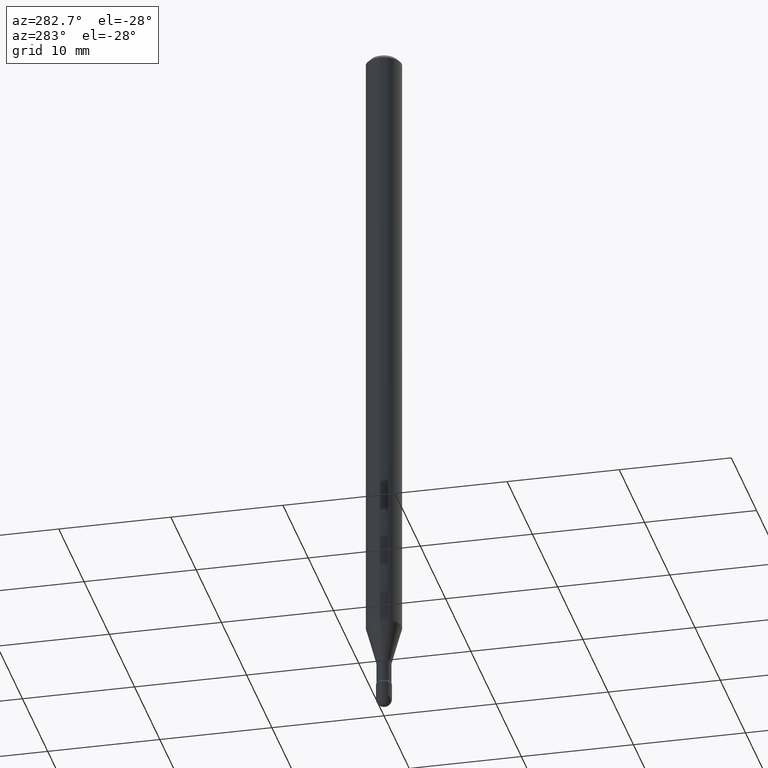
[diagram: clean part render]
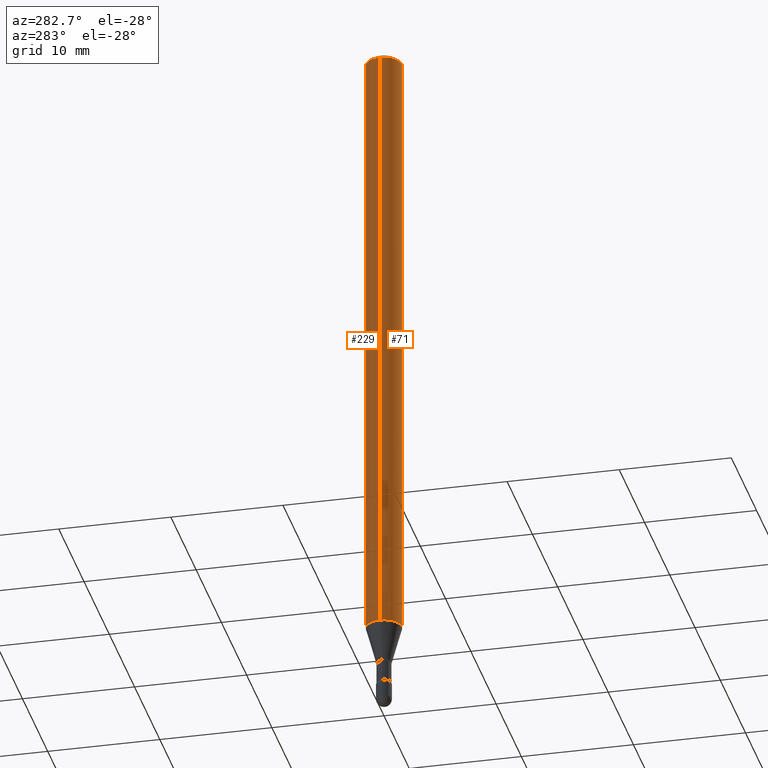
[diagram: same view with one multi-face feature highlighted, each face labeled with its STEP entity id]
A machine part, auxiliary view. The highlighted faces form ONE feature: a constant-radius fillet chain: 2 tangent blend faces with common blend radius 1.5875 mm. The faces share edges in the B-rep.
Their STEP definitions:
[1] entity #71 (Cylinder):
#5 = ORIENTED_EDGE ( 'NONE', *, *, #194, .T. ) ;
#29 = AXIS2_PLACEMENT_3D ( 'NONE', #518, #391, #299 ) ;
#42 = DIRECTION ( 'NONE',  ( -2.445468806185136597E-29, 3.491481338843145583E-15, 1.000000000000000000 ) ) ;
#44 = EDGE_CURVE ( 'NONE', #287, #237, #396, .T. ) ;
#71 = ADVANCED_FACE ( 'NONE', ( #181 ), #378, .T. ) ;
#72 = ORIENTED_EDGE ( 'NONE', *, *, #379, .F. ) ;
#79 = AXIS2_PLACEMENT_3D ( 'NONE', #118, #143, #401 ) ;
#118 = CARTESIAN_POINT ( 'NONE',  ( 3.668203209277725232E-31, -5.237222008264747365E-17, -0.01500000000000008271 ) ) ;
#143 = DIRECTION ( 'NONE',  ( -2.445468806185136597E-29, 3.491481338843145583E-15, 1.000000000000000000 ) ) ;
#144 = ORIENTED_EDGE ( 'NONE', *, *, #44, .T. ) ;
#156 = CARTESIAN_POINT ( 'NONE',  ( -0.06250000000000000000, -3.419619544417463912E-15, -0.01500000000000008271 ) ) ;
#157 = EDGE_LOOP ( 'NONE', ( #72, #144, #5, #230 ) ) ;
#159 = VECTOR ( 'NONE', #348, 39.37007874015748143 ) ;
#172 = CARTESIAN_POINT ( 'NONE',  ( -0.06250000000000000000, -7.230956078602342966E-15, -2.198220337902601074 ) ) ;
#177 = CIRCLE ( 'NONE', #79, 0.06250000000000000000 ) ;
#181 = FACE_OUTER_BOUND ( 'NONE', #157, .T. ) ;
#194 = EDGE_CURVE ( 'NONE', #237, #298, #236, .T. ) ;
#199 = VERTEX_POINT ( 'NONE', #156 ) ;
#202 = DIRECTION ( 'NONE',  ( -2.445468806185136877E-29, 3.491481338843145188E-15, 1.000000000000000000 ) ) ;
#211 = AXIS2_PLACEMENT_3D ( 'NONE', #388, #42, #213 ) ;
#213 = DIRECTION ( 'NONE',  ( 1.000000000000000000, -6.982962677686262766E-15, 0.000000000000000000 ) ) ;
#230 = ORIENTED_EDGE ( 'NONE', *, *, #256, .F. ) ;
#236 = LINE ( 'NONE', #488, #159 ) ;
#237 = VERTEX_POINT ( 'NONE', #484 ) ;
#256 = EDGE_CURVE ( 'NONE', #199, #298, #177, .T. ) ;
#287 = VERTEX_POINT ( 'NONE', #172 ) ;
#298 = VERTEX_POINT ( 'NONE', #527 ) ;
#299 = DIRECTION ( 'NONE',  ( 1.000000000000000000, -6.982962677686266711E-15, 4.852736867747366207E-29 ) ) ;
#319 = CARTESIAN_POINT ( 'NONE',  ( -0.06250000000000000000, 4.440892098500642925E-16, 4.780733988912429571E-16 ) ) ;
#348 = DIRECTION ( 'NONE',  ( -2.445468806185136877E-29, 3.491481338843145188E-15, 1.000000000000000000 ) ) ;
#357 = LINE ( 'NONE', #319, #515 ) ;
#378 = CYLINDRICAL_SURFACE ( 'NONE', #29, 0.06250000000000000000 ) ;
#379 = EDGE_CURVE ( 'NONE', #287, #199, #357, .T. ) ;
#388 = CARTESIAN_POINT ( 'NONE',  ( 5.375679265462560583E-29, -7.675045288452405582E-15, -2.198220337902601074 ) ) ;
#391 = DIRECTION ( 'NONE',  ( -2.445468806185136597E-29, 3.491481338843145583E-15, 1.000000000000000000 ) ) ;
#396 = CIRCLE ( 'NONE', #211, 0.06250000000000000000 ) ;
#401 = DIRECTION ( 'NONE',  ( 1.000000000000000000, -6.982962677686266711E-15, 0.000000000000000000 ) ) ;
#484 = CARTESIAN_POINT ( 'NONE',  ( 0.06250000000000000000, -8.111480455807797251E-15, -2.198220337902601074 ) ) ;
#488 = CARTESIAN_POINT ( 'NONE',  ( 0.06250000000000000000, -4.364351673553899931E-16, 4.780733988912490708E-16 ) ) ;
#515 = VECTOR ( 'NONE', #202, 39.37007874015748143 ) ;
#518 = CARTESIAN_POINT ( 'NONE',  ( -1.169113584055446105E-44, 1.669184350826100908E-30, 4.780733988912460139E-16 ) ) ;
#527 = CARTESIAN_POINT ( 'NONE',  ( 0.06250000000000000000, -4.888073874380391431E-16, -0.01500000000000008271 ) ) ;
[2] entity #229 (Cylinder):
#41 = AXIS2_PLACEMENT_3D ( 'NONE', #304, #522, #137 ) ;
#53 = EDGE_CURVE ( 'NONE', #237, #287, #231, .T. ) ;
#61 = AXIS2_PLACEMENT_3D ( 'NONE', #114, #233, #313 ) ;
#96 = EDGE_CURVE ( 'NONE', #298, #199, #282, .T. ) ;
#114 = CARTESIAN_POINT ( 'NONE',  ( -1.169113584055446105E-44, 1.669184350826100908E-30, 4.780733988912460139E-16 ) ) ;
#132 = DIRECTION ( 'NONE',  ( 1.000000000000000000, -6.982962677686262766E-15, 0.000000000000000000 ) ) ;
#137 = DIRECTION ( 'NONE',  ( 1.000000000000000000, -6.982962677686266711E-15, 0.000000000000000000 ) ) ;
#156 = CARTESIAN_POINT ( 'NONE',  ( -0.06250000000000000000, -3.419619544417463912E-15, -0.01500000000000008271 ) ) ;
#159 = VECTOR ( 'NONE', #348, 39.37007874015748143 ) ;
#171 = CARTESIAN_POINT ( 'NONE',  ( 5.375679265462560583E-29, -7.675045288452405582E-15, -2.198220337902601074 ) ) ;
#172 = CARTESIAN_POINT ( 'NONE',  ( -0.06250000000000000000, -7.230956078602342966E-15, -2.198220337902601074 ) ) ;
#191 = ORIENTED_EDGE ( 'NONE', *, *, #53, .T. ) ;
#194 = EDGE_CURVE ( 'NONE', #237, #298, #236, .T. ) ;
#198 = CYLINDRICAL_SURFACE ( 'NONE', #61, 0.06250000000000000000 ) ;
#199 = VERTEX_POINT ( 'NONE', #156 ) ;
#202 = DIRECTION ( 'NONE',  ( -2.445468806185136877E-29, 3.491481338843145188E-15, 1.000000000000000000 ) ) ;
#209 = EDGE_LOOP ( 'NONE', ( #191, #268, #540, #248 ) ) ;
#219 = AXIS2_PLACEMENT_3D ( 'NONE', #171, #384, #132 ) ;
#229 = ADVANCED_FACE ( 'NONE', ( #351 ), #198, .T. ) ;
#231 = CIRCLE ( 'NONE', #219, 0.06250000000000000000 ) ;
#233 = DIRECTION ( 'NONE',  ( -2.445468806185136597E-29, 3.491481338843145583E-15, 1.000000000000000000 ) ) ;
#236 = LINE ( 'NONE', #488, #159 ) ;
#237 = VERTEX_POINT ( 'NONE', #484 ) ;
#248 = ORIENTED_EDGE ( 'NONE', *, *, #194, .F. ) ;
#268 = ORIENTED_EDGE ( 'NONE', *, *, #379, .T. ) ;
#282 = CIRCLE ( 'NONE', #41, 0.06250000000000000000 ) ;
#287 = VERTEX_POINT ( 'NONE', #172 ) ;
#298 = VERTEX_POINT ( 'NONE', #527 ) ;
#304 = CARTESIAN_POINT ( 'NONE',  ( 3.668203209277725232E-31, -5.237222008264747365E-17, -0.01500000000000008271 ) ) ;
#313 = DIRECTION ( 'NONE',  ( 1.000000000000000000, -6.982962677686266711E-15, 4.852736867747366207E-29 ) ) ;
#319 = CARTESIAN_POINT ( 'NONE',  ( -0.06250000000000000000, 4.440892098500642925E-16, 4.780733988912429571E-16 ) ) ;
#348 = DIRECTION ( 'NONE',  ( -2.445468806185136877E-29, 3.491481338843145188E-15, 1.000000000000000000 ) ) ;
#351 = FACE_OUTER_BOUND ( 'NONE', #209, .T. ) ;
#357 = LINE ( 'NONE', #319, #515 ) ;
#379 = EDGE_CURVE ( 'NONE', #287, #199, #357, .T. ) ;
#384 = DIRECTION ( 'NONE',  ( -2.445468806185136597E-29, 3.491481338843145583E-15, 1.000000000000000000 ) ) ;
#484 = CARTESIAN_POINT ( 'NONE',  ( 0.06250000000000000000, -8.111480455807797251E-15, -2.198220337902601074 ) ) ;
#488 = CARTESIAN_POINT ( 'NONE',  ( 0.06250000000000000000, -4.364351673553899931E-16, 4.780733988912490708E-16 ) ) ;
#515 = VECTOR ( 'NONE', #202, 39.37007874015748143 ) ;
#522 = DIRECTION ( 'NONE',  ( -2.445468806185136597E-29, 3.491481338843145583E-15, 1.000000000000000000 ) ) ;
#527 = CARTESIAN_POINT ( 'NONE',  ( 0.06250000000000000000, -4.888073874380391431E-16, -0.01500000000000008271 ) ) ;
#540 = ORIENTED_EDGE ( 'NONE', *, *, #96, .F. ) ;